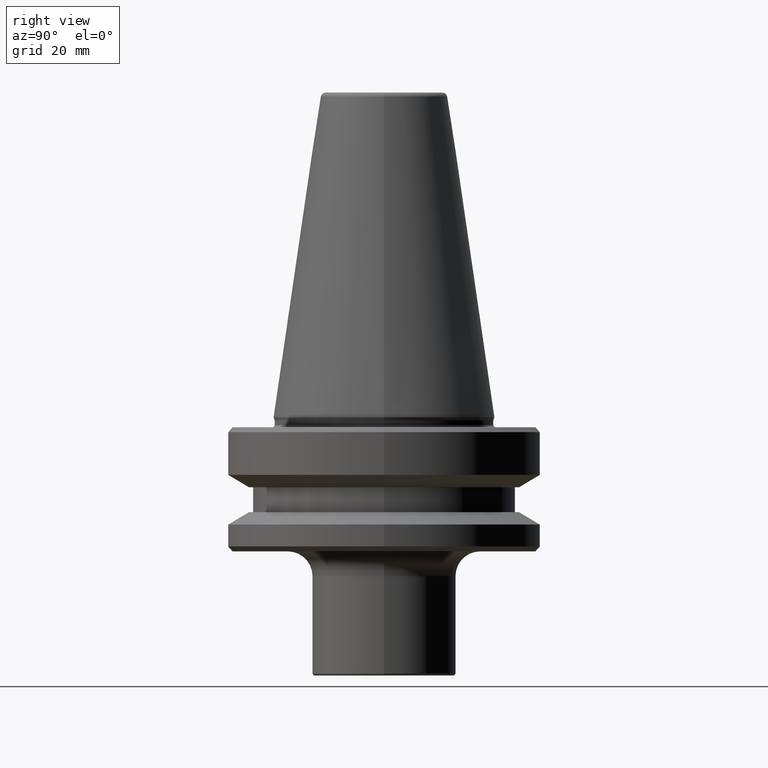
[diagram: clean part render]
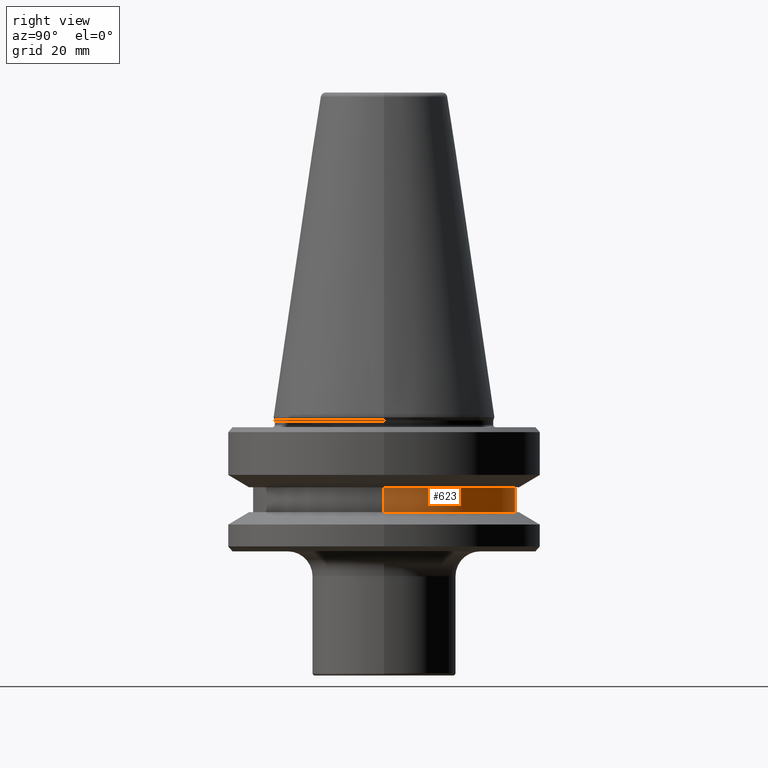
[diagram: same view with one face highlighted and labeled with its STEP entity id]
A machine part, right view. The second image highlights one B-rep face of the part: STEP entity #623.
In plain terms, the highlighted cylindrical surface (partial cylindrical patch) has radius 26.5 mm, axis along (-0, -0, 1).
Its self-contained STEP definition (entity closure, byte-faithful):
#70 = VECTOR ( 'NONE', #347, 1000.000000000000000 ) ;
#162 = VERTEX_POINT ( 'NONE', #780 ) ;
#198 = DIRECTION ( 'NONE',  ( -0.0000000000000000000, -0.0000000000000000000, 1.000000000000000000 ) ) ;
#209 = AXIS2_PLACEMENT_3D ( 'NONE', #839, #791, #551 ) ;
#223 = CARTESIAN_POINT ( 'NONE',  ( -26.50000000000019200, 3.245314017740509400E-015, -84.50000000000068200 ) ) ;
#287 = EDGE_CURVE ( 'NONE', #386, #162, #360, .T. ) ;
#347 = DIRECTION ( 'NONE',  ( -0.0000000000000000000, -0.0000000000000000000, 1.000000000000000000 ) ) ;
#356 = EDGE_CURVE ( 'NONE', #692, #162, #521, .T. ) ;
#360 = CIRCLE ( 'NONE', #675, 26.50000000000019200 ) ;
#371 = CARTESIAN_POINT ( 'NONE',  ( -26.50000000000019200, 3.245314017740509400E-015, 6.357346922996331500 ) ) ;
#373 = ORIENTED_EDGE ( 'NONE', *, *, #919, .F. ) ;
#378 = ORIENTED_EDGE ( 'NONE', *, *, #719, .T. ) ;
#386 = VERTEX_POINT ( 'NONE', #939 ) ;
#415 = CARTESIAN_POINT ( 'NONE',  ( 26.50000000000019200, 0.0000000000000000000, -84.50000000000068200 ) ) ;
#431 = VERTEX_POINT ( 'NONE', #415 ) ;
#493 = CIRCLE ( 'NONE', #209, 26.50000000000019200 ) ;
#521 = LINE ( 'NONE', #371, #957 ) ;
#534 = DIRECTION ( 'NONE',  ( 1.000000000000000000, 0.0000000000000000000, 0.0000000000000000000 ) ) ;
#551 = DIRECTION ( 'NONE',  ( 1.000000000000000000, 0.0000000000000000000, 0.0000000000000000000 ) ) ;
#599 = DIRECTION ( 'NONE',  ( 1.000000000000000000, 0.0000000000000000000, 0.0000000000000000000 ) ) ;
#623 = ADVANCED_FACE ( 'NONE', ( #980 ), #733, .T. ) ;
#675 = AXIS2_PLACEMENT_3D ( 'NONE', #927, #198, #599 ) ;
#690 = LINE ( 'NONE', #819, #70 ) ;
#692 = VERTEX_POINT ( 'NONE', #223 ) ;
#719 = EDGE_CURVE ( 'NONE', #431, #692, #493, .T. ) ;
#733 = CYLINDRICAL_SURFACE ( 'NONE', #1036, 26.50000000000019200 ) ;
#780 = CARTESIAN_POINT ( 'NONE',  ( -26.50000000000019200, 3.245314017740509400E-015, -79.50000000000012800 ) ) ;
#787 = CARTESIAN_POINT ( 'NONE',  ( 0.0000000000000000000, 0.0000000000000000000, 6.357346922996331500 ) ) ;
#791 = DIRECTION ( 'NONE',  ( -0.0000000000000000000, -0.0000000000000000000, 1.000000000000000000 ) ) ;
#796 = EDGE_LOOP ( 'NONE', ( #378, #924, #1044, #373 ) ) ;
#819 = CARTESIAN_POINT ( 'NONE',  ( 26.50000000000019200, 0.0000000000000000000, 6.357346922996331500 ) ) ;
#839 = CARTESIAN_POINT ( 'NONE',  ( 0.0000000000000000000, 0.0000000000000000000, -84.50000000000068200 ) ) ;
#849 = DIRECTION ( 'NONE',  ( -0.0000000000000000000, -0.0000000000000000000, 1.000000000000000000 ) ) ;
#918 = DIRECTION ( 'NONE',  ( -0.0000000000000000000, -0.0000000000000000000, 1.000000000000000000 ) ) ;
#919 = EDGE_CURVE ( 'NONE', #431, #386, #690, .T. ) ;
#924 = ORIENTED_EDGE ( 'NONE', *, *, #356, .T. ) ;
#927 = CARTESIAN_POINT ( 'NONE',  ( 0.0000000000000000000, 0.0000000000000000000, -79.50000000000012800 ) ) ;
#939 = CARTESIAN_POINT ( 'NONE',  ( 26.50000000000019200, 0.0000000000000000000, -79.50000000000012800 ) ) ;
#957 = VECTOR ( 'NONE', #849, 1000.000000000000000 ) ;
#980 = FACE_OUTER_BOUND ( 'NONE', #796, .T. ) ;
#1036 = AXIS2_PLACEMENT_3D ( 'NONE', #787, #918, #534 ) ;
#1044 = ORIENTED_EDGE ( 'NONE', *, *, #287, .F. ) ;